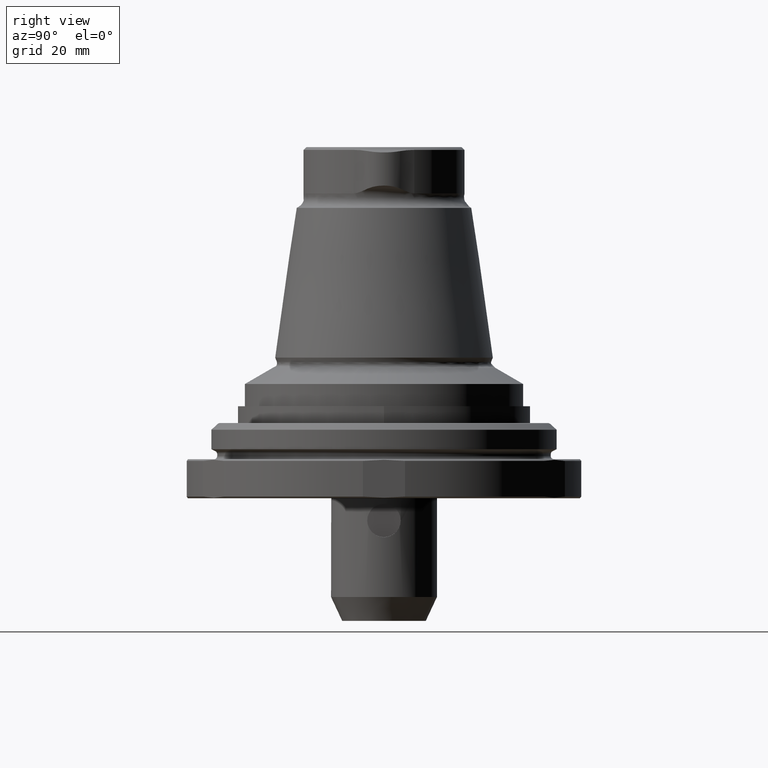
[diagram: clean part render]
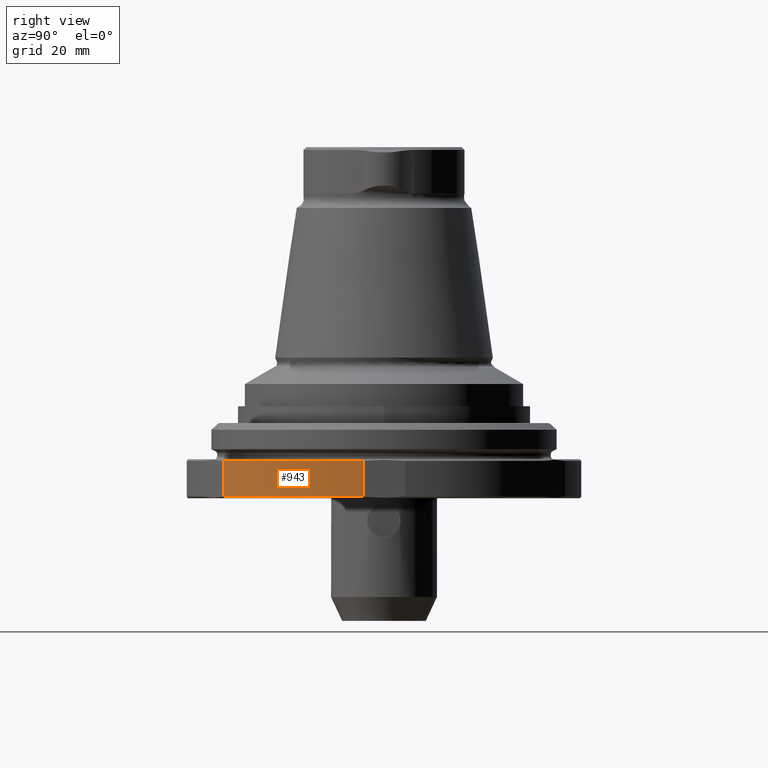
[diagram: same view with one face highlighted and labeled with its STEP entity id]
A machine part, right view. The second image highlights one B-rep face of the part: STEP entity #943.
In plain terms, the highlighted cylindrical surface (partial cylindrical patch) has radius 35.5 mm, axis along (-0, -0, -1).
Its self-contained STEP definition (entity closure, byte-faithful):
#49=LINE('',#1762,#77);
#50=LINE('',#1763,#78);
#77=VECTOR('',#1305,1000.);
#78=VECTOR('',#1306,1000.);
#145=CIRCLE('',#1042,35.5);
#156=CIRCLE('',#1055,35.5);
#372=ORIENTED_EDGE('',*,*,#518,.F.);
#373=ORIENTED_EDGE('',*,*,#529,.T.);
#374=ORIENTED_EDGE('',*,*,#492,.T.);
#375=ORIENTED_EDGE('',*,*,#530,.T.);
#492=EDGE_CURVE('',#600,#599,#145,.T.);
#518=EDGE_CURVE('',#621,#622,#156,.T.);
#529=EDGE_CURVE('',#621,#600,#49,.F.);
#530=EDGE_CURVE('',#599,#622,#50,.T.);
#599=VERTEX_POINT('',#1646);
#600=VERTEX_POINT('',#1648);
#621=VERTEX_POINT('',#1735);
#622=VERTEX_POINT('',#1737);
#741=EDGE_LOOP('',(#372,#373,#374,#375));
#837=FACE_BOUND('',#741,.T.);
#890=CYLINDRICAL_SURFACE('',#1066,35.5);
#943=ADVANCED_FACE('',(#837),#890,.T.);
#1042=AXIS2_PLACEMENT_3D('',#1647,#1245,#1246);
#1055=AXIS2_PLACEMENT_3D('',#1736,#1273,#1274);
#1066=AXIS2_PLACEMENT_3D('',#1761,#1303,#1304);
#1245=DIRECTION('',(-5.47430718319515E-16,-4.76420379815137E-18,-1.));
#1246=DIRECTION('',(-1.,9.15933995315755E-16,5.47430716006892E-16));
#1273=DIRECTION('',(-5.47430718319515E-16,-4.76420379815137E-18,-1.));
#1274=DIRECTION('',(-1.,9.15933995315755E-16,5.47430716006892E-16));
#1303=DIRECTION('',(-5.47430718319515E-16,-4.76420379815137E-18,-1.));
#1304=DIRECTION('',(-1.,9.15933995315755E-16,5.47430716006892E-16));
#1305=DIRECTION('',(-5.47430718319515E-16,-4.76420379815137E-18,-1.));
#1306=DIRECTION('',(-5.47430718319515E-16,-4.76420379815137E-18,-1.));
#1646=CARTESIAN_POINT('',(20.90883414736,-28.6892079813681,-1.3));
#1647=CARTESIAN_POINT('',(-8.90751123334314E-14,-9.81969317073014E-14,-1.29999999999999));
#1648=CARTESIAN_POINT('',(35.2999999999999,-3.7629775444455,-1.30000000000001));
#1735=CARTESIAN_POINT('',(35.2999999999999,-3.7629775444455,-7.70000000000001));
#1736=CARTESIAN_POINT('',(-9.25786689306763E-14,-9.82274226116096E-14,-7.69999999999999));
#1737=CARTESIAN_POINT('',(20.90883414736,-28.6892079813681,-7.70000000000001));
#1761=CARTESIAN_POINT('',(-8.89108831179355E-14,-9.81955024461619E-14,-0.999999999999989));
#1762=CARTESIAN_POINT('',(35.2999999999999,-3.7629775444455,-1.00000000000001));
#1763=CARTESIAN_POINT('',(20.90883414736,-28.6892079813681,-1.));